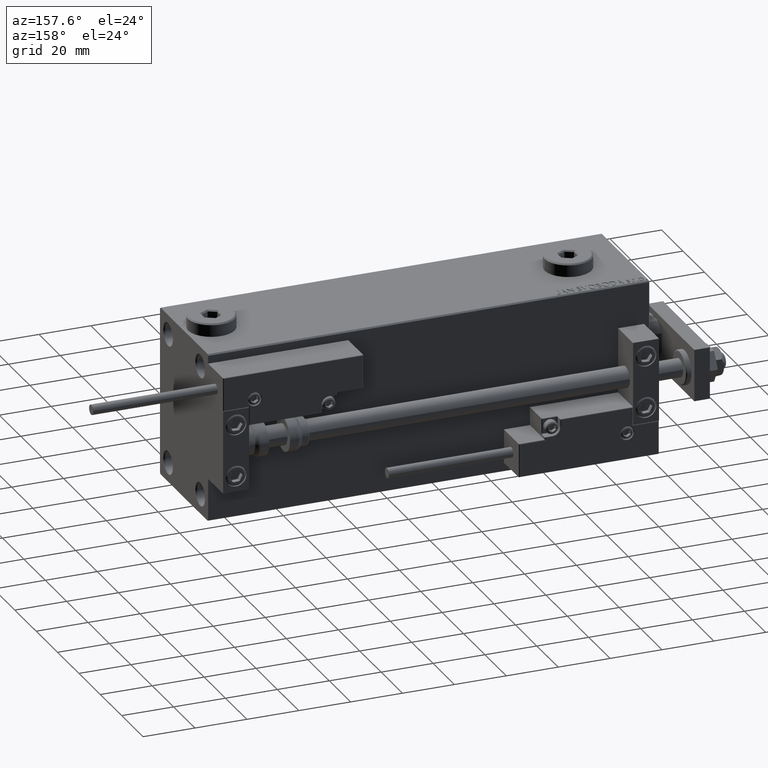
[diagram: clean part render]
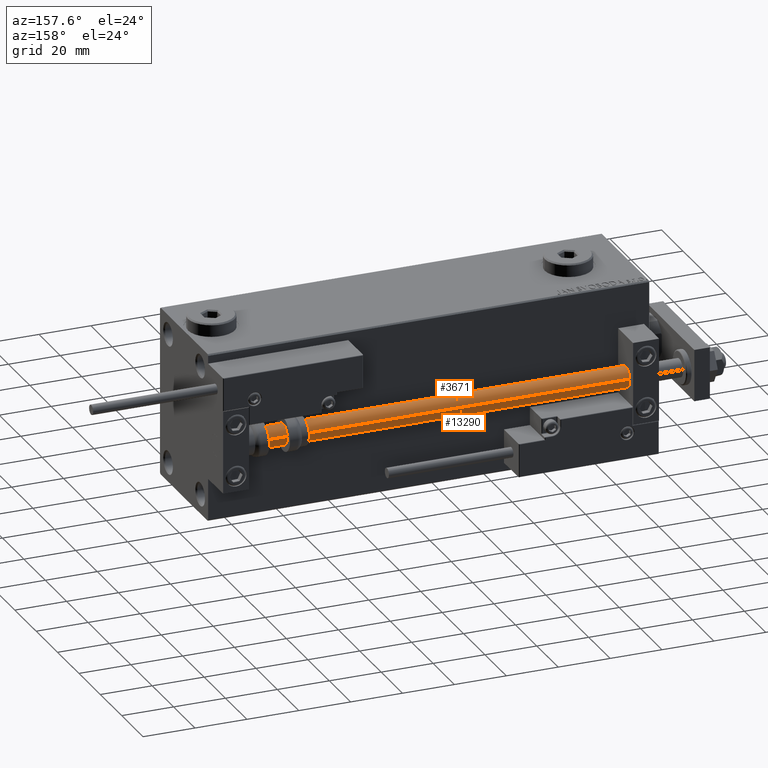
[diagram: same view with one multi-face feature highlighted, each face labeled with its STEP entity id]
A machine part, auxiliary view. The highlighted faces form ONE feature: a constant-radius fillet chain: 2 tangent blend faces with common blend radius 4 mm. The faces share edges in the B-rep.
Their STEP definitions:
[1] entity #3671 (Cylinder):
#1205 = CIRCLE ( 'NONE', #46239, 4.000000000000000000 ) ;
#1309 = ORIENTED_EDGE ( 'NONE', *, *, #10951, .F. ) ;
#3671 = ADVANCED_FACE ( 'NONE', ( #15715 ), #11206, .T. ) ;
#9472 = EDGE_CURVE ( 'NONE', #50439, #51590, #32916, .T. ) ;
#10534 = CARTESIAN_POINT ( 'NONE',  ( -4.000000000000000000, 0.000000000000000000, 170.0000000000000000 ) ) ;
#10859 = EDGE_CURVE ( 'NONE', #51014, #51590, #1205, .T. ) ;
#10951 = EDGE_CURVE ( 'NONE', #34290, #50439, #42842, .T. ) ;
#11206 = CYLINDRICAL_SURFACE ( 'NONE', #47803, 4.000000000000000000 ) ;
#11573 = LINE ( 'NONE', #35242, #39570 ) ;
#12723 = CARTESIAN_POINT ( 'NONE',  ( -4.000000000000000000, 0.000000000000000000, 170.0000000000000000 ) ) ;
#14775 = CARTESIAN_POINT ( 'NONE',  ( 4.000000000000000000, 4.898587196589412829E-16, 170.0000000000000000 ) ) ;
#15715 = FACE_OUTER_BOUND ( 'NONE', #40958, .T. ) ;
#21227 = DIRECTION ( 'NONE',  ( -0.000000000000000000, -0.000000000000000000, -1.000000000000000000 ) ) ;
#24293 = CARTESIAN_POINT ( 'NONE',  ( 0.000000000000000000, 0.000000000000000000, 2.000000000000029310 ) ) ;
#24812 = ORIENTED_EDGE ( 'NONE', *, *, #9472, .F. ) ;
#28398 = AXIS2_PLACEMENT_3D ( 'NONE', #31746, #43697, #40473 ) ;
#31746 = CARTESIAN_POINT ( 'NONE',  ( 0.000000000000000000, 0.000000000000000000, 170.0000000000000000 ) ) ;
#32004 = DIRECTION ( 'NONE',  ( 1.000000000000000000, 0.000000000000000000, 0.000000000000000000 ) ) ;
#32916 = LINE ( 'NONE', #12723, #35934 ) ;
#34290 = VERTEX_POINT ( 'NONE', #14775 ) ;
#35142 = DIRECTION ( 'NONE',  ( -0.000000000000000000, -0.000000000000000000, -1.000000000000000000 ) ) ;
#35190 = EDGE_CURVE ( 'NONE', #34290, #51014, #11573, .T. ) ;
#35242 = CARTESIAN_POINT ( 'NONE',  ( 4.000000000000000000, 4.898587196589412829E-16, 170.0000000000000000 ) ) ;
#35934 = VECTOR ( 'NONE', #21227, 1000.000000000000000 ) ;
#36622 = CARTESIAN_POINT ( 'NONE',  ( 4.000000000000000000, 4.898587196589412829E-16, 2.000000000000029310 ) ) ;
#39570 = VECTOR ( 'NONE', #51447, 1000.000000000000000 ) ;
#39700 = DIRECTION ( 'NONE',  ( -0.000000000000000000, -0.000000000000000000, 1.000000000000000000 ) ) ;
#39890 = DIRECTION ( 'NONE',  ( -1.000000000000000000, 0.000000000000000000, 0.000000000000000000 ) ) ;
#40473 = DIRECTION ( 'NONE',  ( 1.000000000000000000, 0.000000000000000000, 0.000000000000000000 ) ) ;
#40958 = EDGE_LOOP ( 'NONE', ( #1309, #47157, #42100, #24812 ) ) ;
#42100 = ORIENTED_EDGE ( 'NONE', *, *, #10859, .T. ) ;
#42657 = CARTESIAN_POINT ( 'NONE',  ( -4.000000000000000000, 0.000000000000000000, 2.000000000000029310 ) ) ;
#42842 = CIRCLE ( 'NONE', #28398, 4.000000000000000000 ) ;
#43697 = DIRECTION ( 'NONE',  ( 0.000000000000000000, 0.000000000000000000, 1.000000000000000000 ) ) ;
#44150 = CARTESIAN_POINT ( 'NONE',  ( 0.000000000000000000, 0.000000000000000000, 170.0000000000000000 ) ) ;
#46239 = AXIS2_PLACEMENT_3D ( 'NONE', #24293, #39700, #32004 ) ;
#47157 = ORIENTED_EDGE ( 'NONE', *, *, #35190, .T. ) ;
#47803 = AXIS2_PLACEMENT_3D ( 'NONE', #44150, #35142, #39890 ) ;
#50439 = VERTEX_POINT ( 'NONE', #10534 ) ;
#51014 = VERTEX_POINT ( 'NONE', #36622 ) ;
#51447 = DIRECTION ( 'NONE',  ( -0.000000000000000000, -0.000000000000000000, -1.000000000000000000 ) ) ;
#51590 = VERTEX_POINT ( 'NONE', #42657 ) ;
[2] entity #13290 (Cylinder):
#539 = DIRECTION ( 'NONE',  ( 1.000000000000000000, 0.000000000000000000, 0.000000000000000000 ) ) ;
#2486 = ORIENTED_EDGE ( 'NONE', *, *, #7860, .T. ) ;
#7595 = AXIS2_PLACEMENT_3D ( 'NONE', #7607, #43769, #35276 ) ;
#7607 = CARTESIAN_POINT ( 'NONE',  ( 0.000000000000000000, 0.000000000000000000, 170.0000000000000000 ) ) ;
#7860 = EDGE_CURVE ( 'NONE', #51590, #51014, #47911, .T. ) ;
#9472 = EDGE_CURVE ( 'NONE', #50439, #51590, #32916, .T. ) ;
#10534 = CARTESIAN_POINT ( 'NONE',  ( -4.000000000000000000, 0.000000000000000000, 170.0000000000000000 ) ) ;
#11573 = LINE ( 'NONE', #35242, #39570 ) ;
#12723 = CARTESIAN_POINT ( 'NONE',  ( -4.000000000000000000, 0.000000000000000000, 170.0000000000000000 ) ) ;
#13290 = ADVANCED_FACE ( 'NONE', ( #29064 ), #48031, .T. ) ;
#14775 = CARTESIAN_POINT ( 'NONE',  ( 4.000000000000000000, 4.898587196589412829E-16, 170.0000000000000000 ) ) ;
#17353 = CARTESIAN_POINT ( 'NONE',  ( 0.000000000000000000, 0.000000000000000000, 170.0000000000000000 ) ) ;
#20831 = DIRECTION ( 'NONE',  ( -1.000000000000000000, 0.000000000000000000, 0.000000000000000000 ) ) ;
#21227 = DIRECTION ( 'NONE',  ( -0.000000000000000000, -0.000000000000000000, -1.000000000000000000 ) ) ;
#21547 = CARTESIAN_POINT ( 'NONE',  ( 0.000000000000000000, 0.000000000000000000, 2.000000000000029310 ) ) ;
#23637 = EDGE_CURVE ( 'NONE', #50439, #34290, #24623, .T. ) ;
#24623 = CIRCLE ( 'NONE', #7595, 4.000000000000000000 ) ;
#25011 = DIRECTION ( 'NONE',  ( -0.000000000000000000, -0.000000000000000000, 1.000000000000000000 ) ) ;
#25851 = EDGE_LOOP ( 'NONE', ( #49132, #44327, #29106, #2486 ) ) ;
#28366 = AXIS2_PLACEMENT_3D ( 'NONE', #21547, #25011, #539 ) ;
#29064 = FACE_OUTER_BOUND ( 'NONE', #25851, .T. ) ;
#29106 = ORIENTED_EDGE ( 'NONE', *, *, #9472, .T. ) ;
#32916 = LINE ( 'NONE', #12723, #35934 ) ;
#34290 = VERTEX_POINT ( 'NONE', #14775 ) ;
#35190 = EDGE_CURVE ( 'NONE', #34290, #51014, #11573, .T. ) ;
#35242 = CARTESIAN_POINT ( 'NONE',  ( 4.000000000000000000, 4.898587196589412829E-16, 170.0000000000000000 ) ) ;
#35276 = DIRECTION ( 'NONE',  ( 1.000000000000000000, 0.000000000000000000, 0.000000000000000000 ) ) ;
#35934 = VECTOR ( 'NONE', #21227, 1000.000000000000000 ) ;
#36622 = CARTESIAN_POINT ( 'NONE',  ( 4.000000000000000000, 4.898587196589412829E-16, 2.000000000000029310 ) ) ;
#37792 = AXIS2_PLACEMENT_3D ( 'NONE', #17353, #48288, #20831 ) ;
#39570 = VECTOR ( 'NONE', #51447, 1000.000000000000000 ) ;
#42657 = CARTESIAN_POINT ( 'NONE',  ( -4.000000000000000000, 0.000000000000000000, 2.000000000000029310 ) ) ;
#43769 = DIRECTION ( 'NONE',  ( 0.000000000000000000, 0.000000000000000000, 1.000000000000000000 ) ) ;
#44327 = ORIENTED_EDGE ( 'NONE', *, *, #23637, .F. ) ;
#47911 = CIRCLE ( 'NONE', #28366, 4.000000000000000000 ) ;
#48031 = CYLINDRICAL_SURFACE ( 'NONE', #37792, 4.000000000000000000 ) ;
#48288 = DIRECTION ( 'NONE',  ( -0.000000000000000000, -0.000000000000000000, -1.000000000000000000 ) ) ;
#49132 = ORIENTED_EDGE ( 'NONE', *, *, #35190, .F. ) ;
#50439 = VERTEX_POINT ( 'NONE', #10534 ) ;
#51014 = VERTEX_POINT ( 'NONE', #36622 ) ;
#51447 = DIRECTION ( 'NONE',  ( -0.000000000000000000, -0.000000000000000000, -1.000000000000000000 ) ) ;
#51590 = VERTEX_POINT ( 'NONE', #42657 ) ;